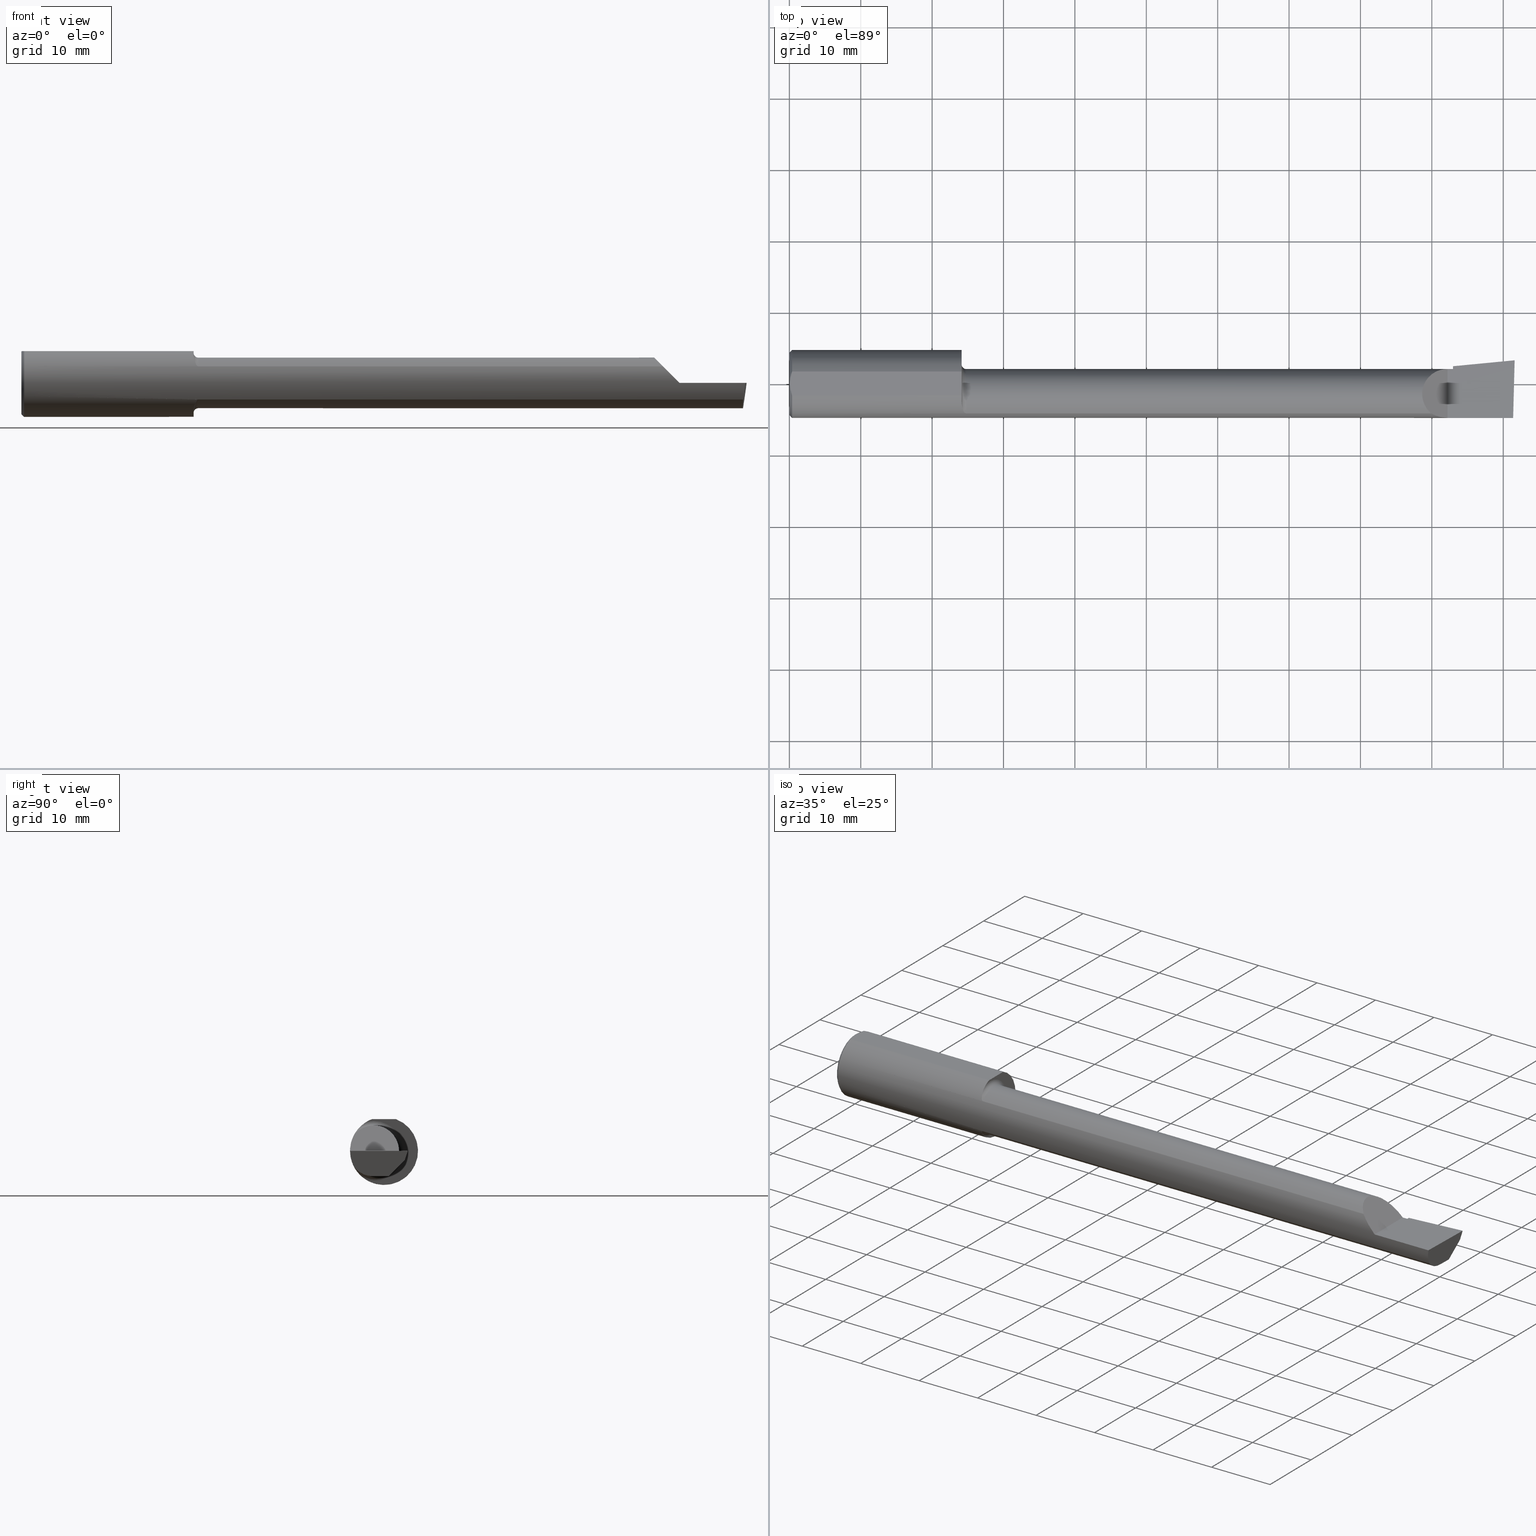
[diagram: canonical four-view strip — front | top / right | iso, engineering-drawing reading convention]
A machine part, canonical four-view strip (front | top / right | iso — engineering-drawing reading convention). The complete STEP part file that produces these views, byte-faithful:
ISO-10303-21;
HEADER;
FILE_DESCRIPTION (( 'STEP AP214' ),
    '1' );
FILE_NAME ('B3203000..STEP',
    '2020-05-07T19:23:13',
    ( '' ),
    ( '' ),
    'SwSTEP 2.0',
    'SolidWorks 2018',
    '' );
FILE_SCHEMA (( 'AUTOMOTIVE_DESIGN' ));
ENDSEC;

DATA;
#1 =( CONVERSION_BASED_UNIT ( 'INCH', #355 ) LENGTH_UNIT ( ) NAMED_UNIT ( #531 ) );
#2 = CARTESIAN_POINT ( 'NONE',  ( 0.01499999999999999424, 0.0000000000000000000, 0.0000000000000000000 ) ) ;
#3 = CARTESIAN_POINT ( 'NONE',  ( 3.656476415630202759, 0.01361451005324059056, -0.1207110541441176466 ) ) ;
#4 = EDGE_CURVE ( 'NONE', #350, #273, #341, .T. ) ;
#5 = FACE_OUTER_BOUND ( 'NONE', #549, .T. ) ;
#6 = DIRECTION ( 'NONE',  ( -0.7071067811865507924, 0.0000000000000000000, 0.7071067811865443531 ) ) ;
#7 = ORIENTED_EDGE ( 'NONE', *, *, #377, .T. ) ;
#8 = VERTEX_POINT ( 'NONE', #480 ) ;
#9 = DIRECTION ( 'NONE',  ( -1.000000000000000000, -4.268512490100411279E-18, -0.0000000000000000000 ) ) ;
#10 = CARTESIAN_POINT ( 'NONE',  ( 3.659999999999999698, -0.05739999999999999963, -0.1400500000000000633 ) ) ;
#11 = VECTOR ( 'NONE', #362, 39.37007874015748854 ) ;
#12 = ADVANCED_FACE ( 'NONE', ( #349 ), #84, .F. ) ;
#13 = ORIENTED_EDGE ( 'NONE', *, *, #212, .T. ) ;
#14 = ORIENTED_EDGE ( 'NONE', *, *, #159, .F. ) ;
#15 =( GEOMETRIC_REPRESENTATION_CONTEXT ( 3 ) GLOBAL_UNCERTAINTY_ASSIGNED_CONTEXT ( ( #173 ) ) GLOBAL_UNIT_ASSIGNED_CONTEXT ( ( #600, #517, #243 ) ) REPRESENTATION_CONTEXT ( 'NONE', 'WORKASPACE' ) );
#16 = PLANE ( 'NONE',  #75 ) ;
#17 = DIRECTION ( 'NONE',  ( 0.0000000000000000000, 0.0000000000000000000, -1.000000000000000000 ) ) ;
#18 = ORIENTED_EDGE ( 'NONE', *, *, #313, .T. ) ;
#19 = ORIENTED_EDGE ( 'NONE', *, *, #130, .F. ) ;
#20 = PRESENTATION_LAYER_ASSIGNMENT (  '', '', ( #550 ) ) ;
#21 = DIRECTION ( 'NONE',  ( -1.000000000000000000, -4.268512490100411279E-18, -0.0000000000000000000 ) ) ;
#22 = CARTESIAN_POINT ( 'NONE',  ( 0.003000000000000218638, 2.334609556160449697E-17, 0.1753499999999999781 ) ) ;
#23 = DIRECTION ( 'NONE',  ( 0.0000000000000000000, 0.0000000000000000000, 1.000000000000000000 ) ) ;
#24 = PLANE ( 'NONE',  #412 ) ;
#25 = DIRECTION ( 'NONE',  ( -1.000000000000000000, 5.691349986800549142E-18, -0.0000000000000000000 ) ) ;
#26 = EDGE_LOOP ( 'NONE', ( #594, #80, #302 ) ) ;
#27 = ORIENTED_EDGE ( 'NONE', *, *, #184, .T. ) ;
#28 = CARTESIAN_POINT ( 'NONE',  ( 2.047026079080032090, -0.05740000000000000657, 4.132328855998353457E-20 ) ) ;
#29 = ADVANCED_BREP_SHAPE_REPRESENTATION ( 'B3203000.', ( #95, #399 ), #15 ) ;
#30 = DIRECTION ( 'NONE',  ( 1.000000000000000000, 0.0000000000000000000, 0.0000000000000000000 ) ) ;
#31 = ORIENTED_EDGE ( 'NONE', *, *, #190, .T. ) ;
#32 = CARTESIAN_POINT ( 'NONE',  ( 0.01499999999999997863, -0.06597272163553657975, 0.1753499999999999781 ) ) ;
#33 = CARTESIAN_POINT ( 'NONE',  ( 3.659999999999999698, 0.09791172361283663472, 0.0000000000000000000 ) ) ;
#34 = EDGE_LOOP ( 'NONE', ( #478, #206, #27, #229 ) ) ;
#35 = DIRECTION ( 'NONE',  ( -4.858719700838190352E-34, -8.537024980200823790E-17, 1.000000000000000000 ) ) ;
#36 = DIRECTION ( 'NONE',  ( 0.0000000000000000000, -1.000000000000000000, 0.0000000000000000000 ) ) ;
#37 = VECTOR ( 'NONE', #266, 39.37007874015748854 ) ;
#38 = AXIS2_PLACEMENT_3D ( 'NONE', #82, #352, #296 ) ;
#39 = DIRECTION ( 'NONE',  ( -0.7071067811865443531, 0.0000000000000000000, -0.7071067811865507924 ) ) ;
#40 = ORIENTED_EDGE ( 'NONE', *, *, #303, .T. ) ;
#41 = DIRECTION ( 'NONE',  ( 1.000000000000000000, 4.268512490100411279E-18, 0.0000000000000000000 ) ) ;
#42 = CARTESIAN_POINT ( 'NONE',  ( 0.9749999999999999778, -0.1635956445993035913, 0.09130436773856066834 ) ) ;
#43 = LINE ( 'NONE', #59, #547 ) ;
#44 = ORIENTED_EDGE ( 'NONE', *, *, #185, .F. ) ;
#45 =( NAMED_UNIT ( * ) SI_UNIT ( $, .STERADIAN. ) SOLID_ANGLE_UNIT ( ) );
#46 = LINE ( 'NONE', #269, #102 ) ;
#47 = CARTESIAN_POINT ( 'NONE',  ( 3.654666039249973686, 0.01321247140458302501, -0.1209457786867196710 ) ) ;
#48 = ADVANCED_FACE ( 'NONE', ( #56 ), #57, .T. ) ;
#49 = ORIENTED_EDGE ( 'NONE', *, *, #329, .T. ) ;
#50 = CARTESIAN_POINT ( 'NONE',  ( 3.659999999999999698, 0.01441505128072236540, -0.1202356058309986681 ) ) ;
#51 = ORIENTED_EDGE ( 'NONE', *, *, #159, .T. ) ;
#52 = DIRECTION ( 'NONE',  ( 1.000000000000000000, 0.0000000000000000000, 0.0000000000000000000 ) ) ;
#53 = ADVANCED_FACE ( 'NONE', ( #278 ), #16, .F. ) ;
#54 = FACE_OUTER_BOUND ( 'NONE', #260, .T. ) ;
#55 = EDGE_CURVE ( 'NONE', #142, #396, #468, .T. ) ;
#56 = FACE_OUTER_BOUND ( 'NONE', #316, .T. ) ;
#57 = CONICAL_SURFACE ( 'NONE', #528, 0.1873499999999999888, 0.7853981633974602694 ) ;
#58 = ORIENTED_EDGE ( 'NONE', *, *, #476, .F. ) ;
#59 = CARTESIAN_POINT ( 'NONE',  ( 0.01499999999999999424, 0.0000000000000000000, -0.1873499999999999888 ) ) ;
#60 = DIRECTION ( 'NONE',  ( -1.253267817926298879E-18, 0.2936076258024062913, 0.9559260233253795702 ) ) ;
#61 = FILL_AREA_STYLE ('',( #336 ) ) ;
#62 = UNCERTAINTY_MEASURE_WITH_UNIT (LENGTH_MEASURE( 1.000000000000000082E-05 ), #1, 'distance_accuracy_value', 'NONE');
#63 = LINE ( 'NONE', #238, #618 ) ;
#64 = ORIENTED_EDGE ( 'NONE', *, *, #315, .F. ) ;
#65 = CARTESIAN_POINT ( 'NONE',  ( 3.659999999999999698, 0.01441505128072236540, -0.1202356058309986681 ) ) ;
#66 = ORIENTED_EDGE ( 'NONE', *, *, #156, .T. ) ;
#67 = CARTESIAN_POINT ( 'NONE',  ( 3.649559965233994507, 0.06624107758111220934, -0.06577907292278802054 ) ) ;
#68 = AXIS2_PLACEMENT_3D ( 'NONE', #195, #421, #486 ) ;
#69 = CARTESIAN_POINT ( 'NONE',  ( 3.999999999999979572, 0.1306500000000239969, 8.433726977940392991E-14 ) ) ;
#70 = ORIENTED_EDGE ( 'NONE', *, *, #250, .F. ) ;
#71 = LINE ( 'NONE', #208, #103 ) ;
#72 = ORIENTED_EDGE ( 'NONE', *, *, #222, .T. ) ;
#73 = DIRECTION ( 'NONE',  ( -1.000000000000000000, -0.0000000000000000000, -0.0000000000000000000 ) ) ;
#74 = CARTESIAN_POINT ( 'NONE',  ( 0.0000000000000000000, -0.05740000000000001351, 0.0000000000000000000 ) ) ;
#75 = AXIS2_PLACEMENT_3D ( 'NONE', #529, #400, #194 ) ;
#76 = ADVANCED_FACE ( 'NONE', ( #391 ), #485, .T. ) ;
#77 =( BOUNDED_CURVE ( )  B_SPLINE_CURVE ( 3, ( #175, #578, #210, #605 ),
 .UNSPECIFIED., .F., .F. ) 
 B_SPLINE_CURVE_WITH_KNOTS ( ( 4, 4 ),
 ( 0.8516985021657694777, 1.360746882515202261 ),
 .UNSPECIFIED. ) 
 CURVE ( )  GEOMETRIC_REPRESENTATION_ITEM ( )  RATIONAL_B_SPLINE_CURVE ( ( 1.000000000000000000, 0.9785221379938660036, 0.9785221379938660036, 1.000000000000000000 ) ) 
 REPRESENTATION_ITEM ( '' )  );
#78 = VECTOR ( 'NONE', #60, 39.37007874015748143 ) ;
#79 = COLOUR_RGB ( '',0.7529411764705882248, 0.7529411764705882248, 0.7529411764705882248 ) ;
#80 = ORIENTED_EDGE ( 'NONE', *, *, #298, .F. ) ;
#81 = VERTEX_POINT ( 'NONE', #155 ) ;
#82 = CARTESIAN_POINT ( 'NONE',  ( 0.9749999999999999778, -0.05739999999999999963, 0.0000000000000000000 ) ) ;
#83 = AXIS2_PLACEMENT_3D ( 'NONE', #617, #254, #179 ) ;
#84 = TOROIDAL_SURFACE ( 'NONE', #38, 0.1650499999999997247, 0.02500000000000001527 ) ;
#85 = ORIENTED_EDGE ( 'NONE', *, *, #222, .F. ) ;
#86 = VERTEX_POINT ( 'NONE', #590 ) ;
#87 = CARTESIAN_POINT ( 'NONE',  ( 3.659999999999999698, 0.06495571228477974024, -0.06814016562413267863 ) ) ;
#88 = ADVANCED_FACE ( 'NONE', ( #129 ), #205, .T. ) ;
#89 = VERTEX_POINT ( 'NONE', #100 ) ;
#90 = LINE ( 'NONE', #403, #11 ) ;
#91 = DIRECTION ( 'NONE',  ( 0.0000000000000000000, 0.0000000000000000000, 1.000000000000000000 ) ) ;
#92 = ORIENTED_EDGE ( 'NONE', *, *, #139, .T. ) ;
#93 = ORIENTED_EDGE ( 'NONE', *, *, #152, .T. ) ;
#94 = CARTESIAN_POINT ( 'NONE',  ( 0.003000000000000218638, 2.334609556160449697E-17, 0.1753499999999999781 ) ) ;
#95 = MANIFOLD_SOLID_BREP ( '772AD285-7EF6-43c1-A111-729DE06EC39F-GAAFaceID6', #211 ) ;
#96 = VECTOR ( 'NONE', #30, 39.37007874015748143 ) ;
#97 = CARTESIAN_POINT ( 'NONE',  ( 0.9749999999999999778, -0.1635956445993038411, -0.09130436773856039079 ) ) ;
#98 = ORIENTED_EDGE ( 'NONE', *, *, #313, .F. ) ;
#99 = ORIENTED_EDGE ( 'NONE', *, *, #242, .T. ) ;
#100 = CARTESIAN_POINT ( 'NONE',  ( 3.649559965233994507, 0.06624107758111220934, -0.06577907292278802054 ) ) ;
#101 = DIRECTION ( 'NONE',  ( -1.000000000000000000, -0.0000000000000000000, -0.0000000000000000000 ) ) ;
#102 = VECTOR ( 'NONE', #183, 39.37007874015748143 ) ;
#103 = VECTOR ( 'NONE', #536, 39.37007874015748854 ) ;
#104 = EDGE_CURVE ( 'NONE', #282, #217, #191, .T. ) ;
#105 = EDGE_LOOP ( 'NONE', ( #322, #154 ) ) ;
#106 = PRODUCT_DEFINITION_SHAPE ( 'NONE', 'NONE',  #370 ) ;
#107 = VECTOR ( 'NONE', #363, 39.37007874015748143 ) ;
#108 = CARTESIAN_POINT ( 'NONE',  ( 0.008227791779583789808, -0.04447712204611815878, 0.1753499999999999781 ) ) ;
#109 = ORIENTED_EDGE ( 'NONE', *, *, #292, .F. ) ;
#110 = CARTESIAN_POINT ( 'NONE',  ( 0.9727799353194342968, -0.1635956445993038688, -0.09130436773856032140 ) ) ;
#111 = CARTESIAN_POINT ( 'NONE',  ( 0.9503837281337297327, -0.1114837668894157752, 0.1508119329971092104 ) ) ;
#112 = DIRECTION ( 'NONE',  ( 0.0000000000000000000, 1.000000000000000000, 0.0000000000000000000 ) ) ;
#113 = ORIENTED_EDGE ( 'NONE', *, *, #133, .T. ) ;
#114 = EDGE_CURVE ( 'NONE', #123, #317, #545, .T. ) ;
#115 = CARTESIAN_POINT ( 'NONE',  ( 3.981080296960509468, -0.1635956445993031472, -0.09130436773856158428 ) ) ;
#116 = FACE_OUTER_BOUND ( 'NONE', #359, .T. ) ;
#117 = VECTOR ( 'NONE', #401, 39.37007874015748854 ) ;
#118 = CARTESIAN_POINT ( 'NONE',  ( 0.01499999999999999424, 0.06597272163553663527, 0.1753499999999999781 ) ) ;
#119 = EDGE_LOOP ( 'NONE', ( #274, #167, #49, #493, #44 ) ) ;
#120 = AXIS2_PLACEMENT_3D ( 'NONE', #328, #358, #240 ) ;
#121 = ORIENTED_EDGE ( 'NONE', *, *, #125, .T. ) ;
#122 = UNCERTAINTY_MEASURE_WITH_UNIT (LENGTH_MEASURE( 1.000000000000000082E-05 ), #477, 'distance_accuracy_value', 'NONE');
#123 = VERTEX_POINT ( 'NONE', #467 ) ;
#124 = VECTOR ( 'NONE', #311, 39.37007874015748143 ) ;
#125 = EDGE_CURVE ( 'NONE', #607, #610, #411, .T. ) ;
#126 = ORIENTED_EDGE ( 'NONE', *, *, #242, .F. ) ;
#127 = VERTEX_POINT ( 'NONE', #32 ) ;
#128 = EDGE_CURVE ( 'NONE', #127, #334, #285, .T. ) ;
#129 = FACE_OUTER_BOUND ( 'NONE', #387, .T. ) ;
#130 = EDGE_CURVE ( 'NONE', #442, #611, #417, .T. ) ;
#131 = APPLICATION_PROTOCOL_DEFINITION ( 'draft international standard', 'automotive_design', 1998, #516 ) ;
#132 = ADVANCED_FACE ( 'NONE', ( #54 ), #382, .F. ) ;
#133 = EDGE_CURVE ( 'NONE', #162, #345, #337, .T. ) ;
#134 = LENGTH_MEASURE_WITH_UNIT ( LENGTH_MEASURE( 0.02539999999999999897 ), #613 );
#135 = VECTOR ( 'NONE', #384, 39.37007874015748854 ) ;
#136 = LINE ( 'NONE', #436, #581 ) ;
#137 = PLANE ( 'NONE',  #510 ) ;
#138 = ORIENTED_EDGE ( 'NONE', *, *, #104, .F. ) ;
#139 = EDGE_CURVE ( 'NONE', #360, #575, #432, .T. ) ;
#140 = CARTESIAN_POINT ( 'NONE',  ( 0.9679759419021531919, -0.1612443294219087220, -0.09540922431498091716 ) ) ;
#141 = CIRCLE ( 'NONE', #271, 0.1400500000000002299 ) ;
#142 = VERTEX_POINT ( 'NONE', #150 ) ;
#143 = DIRECTION ( 'NONE',  ( 1.000000000000000000, 4.268512490100411279E-18, 0.0000000000000000000 ) ) ;
#144 = ORIENTED_EDGE ( 'NONE', *, *, #216, .T. ) ;
#145 = AXIS2_PLACEMENT_3D ( 'NONE', #597, #39, #6 ) ;
#146 =( NAMED_UNIT ( * ) PLANE_ANGLE_UNIT ( ) SI_UNIT ( $, .RADIAN. ) );
#147 = FACE_OUTER_BOUND ( 'NONE', #26, .T. ) ;
#148 = CARTESIAN_POINT ( 'NONE',  ( 3.658254417281639803, 0.01401537333401178288, -0.1204743278970654280 ) ) ;
#149 = CARTESIAN_POINT ( 'NONE',  ( 0.0000000000000000000, 2.202527268266512578E-17, 0.1723499999999996424 ) ) ;
#150 = CARTESIAN_POINT ( 'NONE',  ( 3.981080296960509468, -0.1635956445993031472, -0.09130436773856158428 ) ) ;
#151 = ORIENTED_EDGE ( 'NONE', *, *, #476, .T. ) ;
#152 = EDGE_CURVE ( 'NONE', #8, #127, #164, .T. ) ;
#153 = CIRCLE ( 'NONE', #426, 0.1873499999999999888 ) ;
#154 = ORIENTED_EDGE ( 'NONE', *, *, #324, .T. ) ;
#155 = CARTESIAN_POINT ( 'NONE',  ( 3.629999999999999893, -0.1873499999999999888, -1.383850883036508279E-16 ) ) ;
#156 = EDGE_CURVE ( 'NONE', #345, #310, #245, .T. ) ;
#157 = DIRECTION ( 'NONE',  ( 1.000000000000000000, 4.268512490100411279E-18, 0.0000000000000000000 ) ) ;
#158 = PRESENTATION_LAYER_ASSIGNMENT (  '', '', ( #579 ) ) ;
#159 = EDGE_CURVE ( 'NONE', #162, #86, #599, .T. ) ;
#160 = EDGE_CURVE ( 'NONE', #494, #273, #425, .T. ) ;
#161 = CARTESIAN_POINT ( 'NONE',  ( 3.654666039249973686, 0.01321247140458302501, -0.1209457786867196710 ) ) ;
#162 = VERTEX_POINT ( 'NONE', #394 ) ;
#163 = CARTESIAN_POINT ( 'NONE',  ( 0.01499999999999999424, 0.06597272163553663527, 0.1753499999999999781 ) ) ;
#164 = CIRCLE ( 'NONE', #434, 0.1873499999999999888 ) ;
#165 = DIRECTION ( 'NONE',  ( 0.0000000000000000000, 0.0000000000000000000, -1.000000000000000000 ) ) ;
#166 = EDGE_CURVE ( 'NONE', #273, #566, #456, .T. ) ;
#167 = ORIENTED_EDGE ( 'NONE', *, *, #371, .T. ) ;
#168 = CARTESIAN_POINT ( 'NONE',  ( 0.9637641080978833763, -0.1573043405450777754, 0.1018329020719625222 ) ) ;
#169 =( LENGTH_UNIT ( ) NAMED_UNIT ( * ) SI_UNIT ( $, .METRE. ) );
#170 = ADVANCED_FACE ( 'NONE', ( #5 ), #437, .T. ) ;
#171 = DIRECTION ( 'NONE',  ( -1.000000000000000000, -0.0000000000000000000, -0.0000000000000000000 ) ) ;
#172 = ORIENTED_EDGE ( 'NONE', *, *, #166, .F. ) ;
#173 = UNCERTAINTY_MEASURE_WITH_UNIT (LENGTH_MEASURE( 1.000000000000000082E-05 ), #600, 'distance_accuracy_value', 'NONE');
#174 = DIRECTION ( 'NONE',  ( 0.0000000000000000000, -0.6963153109074927682, -0.7177360153954946975 ) ) ;
#175 = CARTESIAN_POINT ( 'NONE',  ( 3.981080296960509468, -0.1635956445993031472, -0.09130436773856158428 ) ) ;
#176 = ORIENTED_EDGE ( 'NONE', *, *, #212, .F. ) ;
#177 = CARTESIAN_POINT ( 'NONE',  ( 3.659999999999999698, -0.05739999999999999963, 0.0000000000000000000 ) ) ;
#178 = LINE ( 'NONE', #580, #117 ) ;
#179 = DIRECTION ( 'NONE',  ( 0.0000000000000000000, -1.000000000000000000, 0.0000000000000000000 ) ) ;
#180 = EDGE_CURVE ( 'NONE', #442, #282, #141, .T. ) ;
#181 = ORIENTED_EDGE ( 'NONE', *, *, #353, .T. ) ;
#182 = CARTESIAN_POINT ( 'NONE',  ( 3.652201917153907296, 0.03880335782617828216, -0.1900000000000001132 ) ) ;
#183 = DIRECTION ( 'NONE',  ( 0.7071067811865390240, 8.659560562355036396E-17, 0.7071067811865560104 ) ) ;
#184 = EDGE_CURVE ( 'NONE', #566, #257, #153, .T. ) ;
#185 = EDGE_CURVE ( 'NONE', #123, #8, #43, .T. ) ;
#186 = CARTESIAN_POINT ( 'NONE',  ( 3.993439983562941720, 0.1146611065212079367, -0.05000000000000003053 ) ) ;
#187 = ORIENTED_EDGE ( 'NONE', *, *, #264, .F. ) ;
#188 = CARTESIAN_POINT ( 'NONE',  ( 0.0000000000000000000, 0.0000000000000000000, 0.0000000000000000000 ) ) ;
#189 = CARTESIAN_POINT ( 'NONE',  ( 0.9499999999999999556, -0.06597272163553659363, 0.1753499999999999781 ) ) ;
#190 = EDGE_CURVE ( 'NONE', #610, #442, #507, .T. ) ;
#191 = LINE ( 'NONE', #509, #304 ) ;
#192 = CARTESIAN_POINT ( 'NONE',  ( 0.01125230581755086272, 0.05532998191409922023, 0.1753500000000000059 ) ) ;
#193 = ORIENTED_EDGE ( 'NONE', *, *, #292, .T. ) ;
#194 = DIRECTION ( 'NONE',  ( 0.0000000000000000000, 1.000000000000000000, -1.438723400918613551E-16 ) ) ;
#195 = CARTESIAN_POINT ( 'NONE',  ( 0.0000000000000000000, 0.0000000000000000000, 0.0000000000000000000 ) ) ;
#196 = ORIENTED_EDGE ( 'NONE', *, *, #200, .T. ) ;
#197 = CARTESIAN_POINT ( 'NONE',  ( 0.9499999999999999556, 0.1076499999999997320, 0.0000000000000000000 ) ) ;
#198 = AXIS2_PLACEMENT_3D ( 'NONE', #249, #244, #452 ) ;
#199 = APPLICATION_CONTEXT ( 'automotive_design' ) ;
#200 = EDGE_CURVE ( 'NONE', #440, #81, #570, .T. ) ;
#201 = FACE_OUTER_BOUND ( 'NONE', #232, .T. ) ;
#202 = ADVANCED_FACE ( 'NONE', ( #233 ), #24, .T. ) ;
#203 = CARTESIAN_POINT ( 'NONE',  ( 0.01128414053810044941, -0.05542038647445821781, 0.1753499999999999781 ) ) ;
#204 = AXIS2_PLACEMENT_3D ( 'NONE', #219, #463, #393 ) ;
#205 = PLANE ( 'NONE',  #562 ) ;
#206 = ORIENTED_EDGE ( 'NONE', *, *, #166, .T. ) ;
#207 = EDGE_LOOP ( 'NONE', ( #301, #392, #346 ) ) ;
#208 = CARTESIAN_POINT ( 'NONE',  ( 3.648099498941298702, 0.08140859995291799267, -0.05000000000000002359 ) ) ;
#209 = CARTESIAN_POINT ( 'NONE',  ( 3.991672876940992154, -0.1873499999999999888, -1.700101953615524951E-16 ) ) ;
#210 = CARTESIAN_POINT ( 'NONE',  ( 3.987725449370725705, -0.1873499999999999055, -0.03213820089768518184 ) ) ;
#211 = CLOSED_SHELL ( 'NONE', ( #366, #76, #170, #53, #132, #542, #332, #48, #12, #202, #300, #318, #462, #327, #583, #88, #308 ) ) ;
#212 = EDGE_CURVE ( 'NONE', #142, #575, #515, .T. ) ;
#213 = ORIENTED_EDGE ( 'NONE', *, *, #190, .F. ) ;
#214 = VECTOR ( 'NONE', #543, 39.37007874015748143 ) ;
#215 = CARTESIAN_POINT ( 'NONE',  ( 0.9561423219567500853, -0.1426151417460937709, 0.1217894822571224389 ) ) ;
#216 = EDGE_CURVE ( 'NONE', #86, #396, #90, .T. ) ;
#217 = VERTEX_POINT ( 'NONE', #288 ) ;
#218 = VECTOR ( 'NONE', #568, 39.37007874015748143 ) ;
#219 = CARTESIAN_POINT ( 'NONE',  ( 3.975850273311265060, -0.1244607267090813707, -0.1422282308645910209 ) ) ;
#220 = ORIENTED_EDGE ( 'NONE', *, *, #234, .F. ) ;
#221 = ORIENTED_EDGE ( 'NONE', *, *, #377, .F. ) ;
#222 = EDGE_CURVE ( 'NONE', #142, #440, #77, .T. ) ;
#223 = SURFACE_SIDE_STYLE ('',( #540 ) ) ;
#224 = LINE ( 'NONE', #460, #37 ) ;
#225 = EDGE_CURVE ( 'NONE', #217, #530, #71, .T. ) ;
#226 = FILL_AREA_STYLE ('',( #431 ) ) ;
#227 = DIRECTION ( 'NONE',  ( 0.0000000000000000000, 1.000000000000000000, 0.0000000000000000000 ) ) ;
#228 = EDGE_LOOP ( 'NONE', ( #616, #92, #18, #220 ) ) ;
#229 = ORIENTED_EDGE ( 'NONE', *, *, #234, .T. ) ;
#230 = PRESENTATION_STYLE_ASSIGNMENT (( #261 ) ) ;
#231 = CARTESIAN_POINT ( 'NONE',  ( 3.475085956200448578, 0.08265000000000008451, 0.1549140437995496777 ) ) ;
#232 = EDGE_LOOP ( 'NONE', ( #181, #367, #459, #151 ) ) ;
#233 = FACE_OUTER_BOUND ( 'NONE', #34, .T. ) ;
#234 = EDGE_CURVE ( 'NONE', #257, #494, #339, .T. ) ;
#235 = ORIENTED_EDGE ( 'NONE', *, *, #180, .T. ) ;
#236 = ORIENTED_EDGE ( 'NONE', *, *, #250, .T. ) ;
#237 = VECTOR ( 'NONE', #588, 39.37007874015748143 ) ;
#238 = CARTESIAN_POINT ( 'NONE',  ( 0.0000000000000000000, -0.06597272163553657975, 0.1753499999999999781 ) ) ;
#239 = ORIENTED_EDGE ( 'NONE', *, *, #128, .T. ) ;
#240 = DIRECTION ( 'NONE',  ( 4.268512490100411279E-18, -1.000000000000000000, 0.0000000000000000000 ) ) ;
#241 = CARTESIAN_POINT ( 'NONE',  ( 3.421229036482944075, -0.06260079402492460532, 0.2087709635170540423 ) ) ;
#242 = EDGE_CURVE ( 'NONE', #360, #607, #136, .T. ) ;
#243 =( NAMED_UNIT ( * ) SI_UNIT ( $, .STERADIAN. ) SOLID_ANGLE_UNIT ( ) );
#244 = DIRECTION ( 'NONE',  ( -1.000000000000000000, -4.268512490100411279E-18, -0.0000000000000000000 ) ) ;
#245 =( BOUNDED_CURVE ( )  B_SPLINE_CURVE ( 3, ( #65, #148, #3, #161 ),
 .UNSPECIFIED., .F., .F. ) 
 B_SPLINE_CURVE_WITH_KNOTS ( ( 4, 4 ),
 ( 3.403716554974004715, 3.413688882750589126 ),
 .UNSPECIFIED. ) 
 CURVE ( )  GEOMETRIC_REPRESENTATION_ITEM ( )  RATIONAL_B_SPLINE_CURVE ( ( 1.000000000000000000, 0.9999917127403961103, 0.9999917127403961103, 1.000000000000000000 ) ) 
 REPRESENTATION_ITEM ( '' )  );
#246 = CARTESIAN_POINT ( 'NONE',  ( 0.9499999999999999556, -0.09715400696864176511, 0.1601908905959920915 ) ) ;
#247 = VECTOR ( 'NONE', #500, 39.37007874015748143 ) ;
#248 = DIRECTION ( 'NONE',  ( -4.268512490100411279E-18, 1.000000000000000000, 0.0000000000000000000 ) ) ;
#249 = CARTESIAN_POINT ( 'NONE',  ( 0.9499999999999999556, -0.05740000000000001351, 0.0000000000000000000 ) ) ;
#250 = EDGE_CURVE ( 'NONE', #440, #410, #224, .T. ) ;
#251 = ORIENTED_EDGE ( 'NONE', *, *, #55, .T. ) ;
#252 = AXIS2_PLACEMENT_3D ( 'NONE', #447, #351, #615 ) ;
#253 = CARTESIAN_POINT ( 'NONE',  ( 0.004093196532652216939, -0.02240707710020816909, 0.1753499999999999504 ) ) ;
#254 = DIRECTION ( 'NONE',  ( -1.000000000000000000, -4.268512490100411279E-18, -0.0000000000000000000 ) ) ;
#255 =( BOUNDED_CURVE ( )  B_SPLINE_CURVE ( 3, ( #354, #473, #433, #505 ),
 .UNSPECIFIED., .F., .T. ) 
 B_SPLINE_CURVE_WITH_KNOTS ( ( 4, 4 ),
 ( 4.712388980384689674, 5.221437360734123345 ),
 .UNSPECIFIED. ) 
 CURVE ( )  GEOMETRIC_REPRESENTATION_ITEM ( )  RATIONAL_B_SPLINE_CURVE ( ( 1.000000000000000000, 0.9785221379938657815, 0.9785221379938657815, 1.000000000000000000 ) ) 
 REPRESENTATION_ITEM ( '' )  );
#256 = CARTESIAN_POINT ( 'NONE',  ( 3.977873865042411250, -0.05739999999999999963, -0.1400500000000000633 ) ) ;
#257 = VERTEX_POINT ( 'NONE', #312 ) ;
#258 = EDGE_CURVE ( 'NONE', #257, #360, #495, .T. ) ;
#259 = DIRECTION ( 'NONE',  ( -8.744705756855574331E-17, 0.0000000000000000000, -1.000000000000000000 ) ) ;
#260 = EDGE_LOOP ( 'NONE', ( #514, #236, #592, #19, #213, #576 ) ) ;
#261 = SURFACE_STYLE_USAGE ( .BOTH. , #223 ) ;
#262 = DIRECTION ( 'NONE',  ( -1.000000000000000000, -0.0000000000000000000, -0.0000000000000000000 ) ) ;
#263 = DIRECTION ( 'NONE',  ( 1.000000000000000000, 0.0000000000000000000, 0.0000000000000000000 ) ) ;
#264 = EDGE_CURVE ( 'NONE', #89, #310, #422, .T. ) ;
#265 = EDGE_CURVE ( 'NONE', #350, #8, #320, .T. ) ;
#266 = DIRECTION ( 'NONE',  ( 0.02617694830779336568, 0.9996573249755593693, -2.255099122137375044E-18 ) ) ;
#267 = APPLICATION_PROTOCOL_DEFINITION ( 'draft international standard', 'automotive_design', 1998, #199 ) ;
#268 = CARTESIAN_POINT ( 'NONE',  ( 0.9580729541431400875, -0.1479074971576205821, 0.1152872342625222146 ) ) ;
#269 = CARTESIAN_POINT ( 'NONE',  ( 0.01499999999999999424, 2.294375778202566330E-17, 0.1873499999999999888 ) ) ;
#270 = CARTESIAN_POINT ( 'NONE',  ( 0.003000000000000218638, 2.334609556160449697E-17, 0.1753499999999999781 ) ) ;
#271 = AXIS2_PLACEMENT_3D ( 'NONE', #177, #21, #438 ) ;
#272 = DIRECTION ( 'NONE',  ( 0.0000000000000000000, -0.2936076258024062913, -0.9559260233253795702 ) ) ;
#273 = VERTEX_POINT ( 'NONE', #596 ) ;
#274 = ORIENTED_EDGE ( 'NONE', *, *, #324, .F. ) ;
#275 =( LENGTH_UNIT ( ) NAMED_UNIT ( * ) SI_UNIT ( $, .METRE. ) );
#276 = CARTESIAN_POINT ( 'NONE',  ( 4.000000000000000000, -0.05739999999999999963, -0.1400500000000000633 ) ) ;
#277 = EDGE_CURVE ( 'NONE', #512, #162, #490, .T. ) ;
#278 = FACE_OUTER_BOUND ( 'NONE', #405, .T. ) ;
#279 = CARTESIAN_POINT ( 'NONE',  ( 3.538695632261437574, -0.1635956445993030917, 0.09130436773856166754 ) ) ;
#280 = CARTESIAN_POINT ( 'NONE',  ( 3.648099498941298702, 0.08140859995291799267, -0.05000000000000002359 ) ) ;
#281 = DIRECTION ( 'NONE',  ( 0.0000000000000000000, 0.0000000000000000000, 1.000000000000000000 ) ) ;
#282 = VERTEX_POINT ( 'NONE', #582 ) ;
#283 = EDGE_CURVE ( 'NONE', #410, #530, #522, .T. ) ;
#284 = CARTESIAN_POINT ( 'NONE',  ( 0.003000000000000172667, -0.01126410975715121283, 0.1753500000000000059 ) ) ;
#285 = B_SPLINE_CURVE_WITH_KNOTS ( 'NONE', 3,
 ( #380, #203, #108, #253, #284, #94 ),
 .UNSPECIFIED., .F., .F.,
 ( 4, 2, 4 ),
 ( 0.001779942938356815062, 0.002629978419973711019, 0.003480013901590607410 ),
 .UNSPECIFIED. ) ;
#286 = AXIS2_PLACEMENT_3D ( 'NONE', #2, #263, #17 ) ;
#287 = EDGE_CURVE ( 'NONE', #81, #610, #546, .T. ) ;
#288 = CARTESIAN_POINT ( 'NONE',  ( 3.659999999999999698, 0.08255448787293397095, -0.05000000000000003053 ) ) ;
#289 = ORIENTED_EDGE ( 'NONE', *, *, #371, .F. ) ;
#290 = DIRECTION ( 'NONE',  ( -1.000000000000000000, -4.268512490100411279E-18, 0.0000000000000000000 ) ) ;
#291 = ORIENTED_EDGE ( 'NONE', *, *, #258, .F. ) ;
#292 = EDGE_CURVE ( 'NONE', #89, #310, #435, .T. ) ;
#293 = CARTESIAN_POINT ( 'NONE',  ( 4.000000000000000000, -0.2500000000000000555, -1.707404996040164512E-16 ) ) ;
#294 =( NAMED_UNIT ( * ) PLANE_ANGLE_UNIT ( ) SI_UNIT ( $, .RADIAN. ) );
#295 = VECTOR ( 'NONE', #356, 39.37007874015747433 ) ;
#296 = DIRECTION ( 'NONE',  ( 4.268512490100411279E-18, -1.000000000000000000, 0.0000000000000000000 ) ) ;
#297 = CARTESIAN_POINT ( 'NONE',  ( 3.646634349579652490, 0.09662475785532552430, -6.829619984160658046E-17 ) ) ;
#298 = EDGE_CURVE ( 'NONE', #81, #607, #255, .T. ) ;
#299 =( GEOMETRIC_REPRESENTATION_CONTEXT ( 3 ) GLOBAL_UNCERTAINTY_ASSIGNED_CONTEXT ( ( #122 ) ) GLOBAL_UNIT_ASSIGNED_CONTEXT ( ( #477, #294, #577 ) ) REPRESENTATION_CONTEXT ( 'NONE', 'WORKASPACE' ) );
#300 = ADVANCED_FACE ( 'NONE', ( #357 ), #481, .T. ) ;
#301 = ORIENTED_EDGE ( 'NONE', *, *, #133, .F. ) ;
#302 = ORIENTED_EDGE ( 'NONE', *, *, #287, .T. ) ;
#303 = EDGE_CURVE ( 'NONE', #345, #512, #601, .T. ) ;
#304 = VECTOR ( 'NONE', #458, 39.37007874015748143 ) ;
#305 = VECTOR ( 'NONE', #374, 39.37007874015748143 ) ;
#306 = CARTESIAN_POINT ( 'NONE',  ( 3.659999999999999698, 0.1149890494305081945, -0.01656765604781319789 ) ) ;
#307 = ORIENTED_EDGE ( 'NONE', *, *, #329, .F. ) ;
#308 = ADVANCED_FACE ( 'NONE', ( #474 ), #369, .F. ) ;
#309 = ORIENTED_EDGE ( 'NONE', *, *, #55, .F. ) ;
#310 = VERTEX_POINT ( 'NONE', #325 ) ;
#311 = DIRECTION ( 'NONE',  ( -4.268512490100411279E-18, 1.000000000000000000, 3.732688574539098315E-34 ) ) ;
#312 = CARTESIAN_POINT ( 'NONE',  ( 0.9499999999999999556, -0.09715400696864176511, 0.1601908905959920915 ) ) ;
#313 = EDGE_CURVE ( 'NONE', #575, #494, #326, .T. ) ;
#314 = LINE ( 'NONE', #28, #214 ) ;
#315 = EDGE_CURVE ( 'NONE', #530, #86, #178, .T. ) ;
#316 = EDGE_LOOP ( 'NONE', ( #289, #418, #502, #93, #239 ) ) ;
#317 = VERTEX_POINT ( 'NONE', #149 ) ;
#318 = ADVANCED_FACE ( 'NONE', ( #609 ), #482, .T. ) ;
#319 = DIRECTION ( 'NONE',  ( -0.09584575252021095004, 0.9953961983671800740, 0.0000000000000000000 ) ) ;
#320 = CIRCLE ( 'NONE', #252, 0.1873499999999999888 ) ;
#321 = CARTESIAN_POINT ( 'NONE',  ( 0.9499999999999999556, 0.0000000000000000000, 0.0000000000000000000 ) ) ;
#322 = ORIENTED_EDGE ( 'NONE', *, *, #114, .T. ) ;
#323 = ORIENTED_EDGE ( 'NONE', *, *, #128, .F. ) ;
#324 = EDGE_CURVE ( 'NONE', #317, #123, #555, .T. ) ;
#325 = CARTESIAN_POINT ( 'NONE',  ( 3.654666039249973686, 0.01321247140458302501, -0.1209457786867196710 ) ) ;
#326 = B_SPLINE_CURVE_WITH_KNOTS ( 'NONE', 3,
 ( #397, #110, #427, #140, #424, #572, #484, #544, #383, #560, #488, #503, #406, #376 ),
 .UNSPECIFIED., .F., .F.,
 ( 4, 2, 2, 2, 2, 2, 4 ),
 ( 1.968340875534775316E-07, 0.0001667114270246299545, 0.0003332260199617064389, 0.0006662552058358533905, 0.001332313577584149028, 0.001998371949332444341, 0.002664430321080739870 ),
 .UNSPECIFIED. ) ;
#327 = ADVANCED_FACE ( 'NONE', ( #201 ), #553, .F. ) ;
#328 = CARTESIAN_POINT ( 'NONE',  ( 3.659999999999999698, 0.09791172361283663472, 0.0000000000000000000 ) ) ;
#329 = EDGE_CURVE ( 'NONE', #334, #350, #465, .T. ) ;
#330 = SURFACE_STYLE_USAGE ( .BOTH. , #595 ) ;
#331 = PRODUCT_RELATED_PRODUCT_CATEGORY ( 'part', '', ( #518 ) ) ;
#332 = ADVANCED_FACE ( 'NONE', ( #569 ), #604, .F. ) ;
#333 = ORIENTED_EDGE ( 'NONE', *, *, #265, .F. ) ;
#334 = VERTEX_POINT ( 'NONE', #22 ) ;
#335 = PLANE ( 'NONE',  #145 ) ;
#336 = FILL_AREA_STYLE_COLOUR ( '', #79 ) ;
#337 = LINE ( 'NONE', #306, #563 ) ;
#338 = CARTESIAN_POINT ( 'NONE',  ( 3.538695632261437574, -0.1635956445993030917, 0.09130436773856166754 ) ) ;
#339 = CIRCLE ( 'NONE', #198, 0.1650499999999997525 ) ;
#340 = CARTESIAN_POINT ( 'NONE',  ( 3.659999999999999698, -0.05739999999999999963, -0.1400500000000000633 ) ) ;
#341 = LINE ( 'NONE', #389, #96 ) ;
#342 = VECTOR ( 'NONE', #361, 39.37007874015748143 ) ;
#343 = CARTESIAN_POINT ( 'NONE',  ( 3.648099498941298702, 0.08140859995291799267, -0.05000000000000002359 ) ) ;
#344 = CARTESIAN_POINT ( 'NONE',  ( 0.9749999999999999778, -0.05740000000000001351, 0.0000000000000000000 ) ) ;
#345 = VERTEX_POINT ( 'NONE', #50 ) ;
#346 = ORIENTED_EDGE ( 'NONE', *, *, #303, .F. ) ;
#347 = DIRECTION ( 'NONE',  ( 4.268512490100411279E-18, -1.000000000000000000, 0.0000000000000000000 ) ) ;
#348 = CONICAL_SURFACE ( 'NONE', #286, 0.1873499999999999888, 0.7853981633974602694 ) ;
#349 = FACE_OUTER_BOUND ( 'NONE', #228, .T. ) ;
#350 = VERTEX_POINT ( 'NONE', #118 ) ;
#351 = DIRECTION ( 'NONE',  ( -1.000000000000000000, -0.0000000000000000000, -0.0000000000000000000 ) ) ;
#352 = DIRECTION ( 'NONE',  ( -1.000000000000000000, -4.268512490100411279E-18, -0.0000000000000000000 ) ) ;
#353 = EDGE_CURVE ( 'NONE', #611, #410, #314, .T. ) ;
#354 = CARTESIAN_POINT ( 'NONE',  ( 3.629999999999999893, -0.1873499999999999888, -1.383850883036508279E-16 ) ) ;
#355 = LENGTH_MEASURE_WITH_UNIT ( LENGTH_MEASURE( 0.02539999999999999897 ), #275 );
#356 = DIRECTION ( 'NONE',  ( -0.1240019227988273798, -0.3022330132596592889, -0.9451342385281470415 ) ) ;
#357 = FACE_OUTER_BOUND ( 'NONE', #373, .T. ) ;
#358 = DIRECTION ( 'NONE',  ( -1.000000000000000000, -4.268512490100411279E-18, 0.0000000000000000000 ) ) ;
#359 = EDGE_LOOP ( 'NONE', ( #51, #144, #586, #498 ) ) ;
#360 = VERTEX_POINT ( 'NONE', #537 ) ;
#361 = DIRECTION ( 'NONE',  ( -1.000000000000000000, -0.0000000000000000000, -0.0000000000000000000 ) ) ;
#362 = DIRECTION ( 'NONE',  ( -0.02617694830779337609, -0.9996573249755593693, -8.535148296544463652E-17 ) ) ;
#363 = DIRECTION ( 'NONE',  ( 0.06658005426110566449, -0.6914603011188223958, -0.7193398003386547446 ) ) ;
#364 = CARTESIAN_POINT ( 'NONE',  ( 0.0000000000000000000, 0.0000000000000000000, 0.0000000000000000000 ) ) ;
#365 = ORIENTED_EDGE ( 'NONE', *, *, #152, .F. ) ;
#366 = ADVANCED_FACE ( 'NONE', ( #591 ), #348, .T. ) ;
#367 = ORIENTED_EDGE ( 'NONE', *, *, #283, .T. ) ;
#368 = PRODUCT_CONTEXT ( 'NONE', #516, 'mechanical' ) ;
#369 = PLANE ( 'NONE',  #204 ) ;
#370 = PRODUCT_DEFINITION ( 'UNKNOWN', '', #598, #475 ) ;
#371 = EDGE_CURVE ( 'NONE', #317, #334, #46, .T. ) ;
#372 = CARTESIAN_POINT ( 'NONE',  ( 0.01499999999999999424, 0.0000000000000000000, 0.0000000000000000000 ) ) ;
#373 = EDGE_LOOP ( 'NONE', ( #138, #378, #585, #58 ) ) ;
#374 = DIRECTION ( 'NONE',  ( 0.0000000000000000000, 1.000000000000000000, 8.537024980200821325E-17 ) ) ;
#375 = CARTESIAN_POINT ( 'NONE',  ( 0.0000000000000000000, 0.0000000000000000000, 0.0000000000000000000 ) ) ;
#376 = CARTESIAN_POINT ( 'NONE',  ( 0.9499999999999999556, -0.09715400696864176511, -0.1601908905959920915 ) ) ;
#377 = EDGE_CURVE ( 'NONE', #89, #282, #386, .T. ) ;
#378 = ORIENTED_EDGE ( 'NONE', *, *, #180, .F. ) ;
#379 = EDGE_CURVE ( 'NONE', #396, #512, #535, .T. ) ;
#380 = CARTESIAN_POINT ( 'NONE',  ( 0.01499999999999997863, -0.06597272163553657975, 0.1753499999999999781 ) ) ;
#381 = CARTESIAN_POINT ( 'NONE',  ( 0.004115035183746292881, 0.02255629470626744487, 0.1753499999999999781 ) ) ;
#382 = PLANE ( 'NONE',  #415 ) ;
#383 = CARTESIAN_POINT ( 'NONE',  ( 0.9561458414306045483, -0.1426194794824346135, -0.1217813759115459610 ) ) ;
#384 = DIRECTION ( 'NONE',  ( 0.9953961983671800740, 0.09584575252021028391, 1.093478026937438433E-17 ) ) ;
#385 = CARTESIAN_POINT ( 'NONE',  ( 4.000000000000000000, -0.05739999999999999963, -0.1400500000000000633 ) ) ;
#386 =( BOUNDED_CURVE ( )  B_SPLINE_CURVE ( 3, ( #67, #453, #414, #87 ),
 .UNSPECIFIED., .F., .F. ) 
 B_SPLINE_CURVE_WITH_KNOTS ( ( 4, 4 ),
 ( 2.860273215522870505, 2.879468752205585957 ),
 .UNSPECIFIED. ) 
 CURVE ( )  GEOMETRIC_REPRESENTATION_ITEM ( )  RATIONAL_B_SPLINE_CURVE ( ( 1.000000000000000000, 0.9999692945166647196, 0.9999692945166647196, 1.000000000000000000 ) ) 
 REPRESENTATION_ITEM ( '' )  );
#387 = EDGE_LOOP ( 'NONE', ( #193, #187 ) ) ;
#388 = COLOUR_RGB ( '',0.7529411764705882248, 0.7529411764705882248, 0.7529411764705882248 ) ;
#389 = CARTESIAN_POINT ( 'NONE',  ( 0.0000000000000000000, 0.06597272163553663527, 0.1753499999999999781 ) ) ;
#390 = CARTESIAN_POINT ( 'NONE',  ( 1.565719721143680372E-32, -0.1873499999999999610, 1.790477306702064235E-16 ) ) ;
#391 = FACE_OUTER_BOUND ( 'NONE', #207, .T. ) ;
#392 = ORIENTED_EDGE ( 'NONE', *, *, #277, .F. ) ;
#393 = DIRECTION ( 'NONE',  ( 0.1219104985251949075, 0.0000000000000000000, 0.9925410975618783604 ) ) ;
#394 = CARTESIAN_POINT ( 'NONE',  ( 3.659999999999999698, -0.004807985797372722400, -0.1400500000000000633 ) ) ;
#395 = ORIENTED_EDGE ( 'NONE', *, *, #160, .F. ) ;
#396 = VERTEX_POINT ( 'NONE', #554 ) ;
#397 = CARTESIAN_POINT ( 'NONE',  ( 0.9749999999999999778, -0.1635956445993038411, -0.09130436773856039079 ) ) ;
#398 = CARTESIAN_POINT ( 'NONE',  ( 3.991859106488688358, 0.02714641170210411319, -0.1400500000000000633 ) ) ;
#399 = AXIS2_PLACEMENT_3D ( 'NONE', #471, #23, #52 ) ;
#400 = DIRECTION ( 'NONE',  ( 0.0000000000000000000, -1.438723400918613551E-16, -1.000000000000000000 ) ) ;
#401 = DIRECTION ( 'NONE',  ( -0.1053106618240638170, -0.6976485211320201385, -0.7086580314005358483 ) ) ;
#402 = DIMENSIONAL_EXPONENTS ( 1.000000000000000000, 0.0000000000000000000, 0.0000000000000000000, 0.0000000000000000000, 0.0000000000000000000, 0.0000000000000000000, 0.0000000000000000000 ) ;
#403 = CARTESIAN_POINT ( 'NONE',  ( 3.977889026591898691, -0.05682100378451884065, -0.1400500000000000633 ) ) ;
#404 = LINE ( 'NONE', #574, #78 ) ;
#405 = EDGE_LOOP ( 'NONE', ( #172, #483, #307, #323, #449 ) ) ;
#406 = CARTESIAN_POINT ( 'NONE',  ( 0.9499999999999998446, -0.1045082199249686428, -0.1557306416133589222 ) ) ;
#407 = EDGE_CURVE ( 'NONE', #566, #127, #63, .T. ) ;
#408 = CARTESIAN_POINT ( 'NONE',  ( 3.977925907309858289, -0.1365595166907236646, -0.1227499502647107082 ) ) ;
#409 = CARTESIAN_POINT ( 'NONE',  ( 3.993291301099662238, 0.1142987190042921014, -0.05113324764279843226 ) ) ;
#410 = VERTEX_POINT ( 'NONE', #69 ) ;
#411 =( BOUNDED_CURVE ( )  B_SPLINE_CURVE ( 3, ( #279, #241, #231, #446 ),
 .UNSPECIFIED., .F., .T. ) 
 B_SPLINE_CURVE_WITH_KNOTS ( ( 4, 4 ),
 ( 5.422530673488456188, 7.853981633974483678 ),
 .UNSPECIFIED. ) 
 CURVE ( )  GEOMETRIC_REPRESENTATION_ITEM ( )  RATIONAL_B_SPLINE_CURVE ( ( 1.000000000000000000, 0.5651045289226852564, 0.5651045289226852564, 1.000000000000000000 ) ) 
 REPRESENTATION_ITEM ( '' )  );
#412 = AXIS2_PLACEMENT_3D ( 'NONE', #197, #157, #248 ) ;
#413 = EDGE_LOOP ( 'NONE', ( #251, #532, #64, #472, #70, #85 ) ) ;
#414 = CARTESIAN_POINT ( 'NONE',  ( 3.656639924654159657, 0.06539171466162836677, -0.06735725908305592591 ) ) ;
#415 = AXIS2_PLACEMENT_3D ( 'NONE', #293, #259, #513 ) ;
#416 = CARTESIAN_POINT ( 'NONE',  ( 0.008244775919947424855, 0.04453482769755855164, 0.1753499999999999504 ) ) ;
#417 = LINE ( 'NONE', #565, #124 ) ;
#418 = ORIENTED_EDGE ( 'NONE', *, *, #114, .F. ) ;
#419 = SURFACE_STYLE_FILL_AREA ( #61 ) ;
#420 = DIRECTION ( 'NONE',  ( 0.0000000000000000000, 0.0000000000000000000, 1.000000000000000000 ) ) ;
#421 = DIRECTION ( 'NONE',  ( 1.000000000000000000, 0.0000000000000000000, 0.0000000000000000000 ) ) ;
#422 =( BOUNDED_CURVE ( )  B_SPLINE_CURVE ( 3, ( #534, #602, #443, #47 ),
 .UNSPECIFIED., .F., .F. ) 
 B_SPLINE_CURVE_WITH_KNOTS ( ( 4, 4 ),
 ( 0.4889314207010938551, 1.042347087928814364 ),
 .UNSPECIFIED. ) 
 CURVE ( )  GEOMETRIC_REPRESENTATION_ITEM ( )  RATIONAL_B_SPLINE_CURVE ( ( 1.000000000000000000, 0.9746400248777661313, 0.9746400248777661313, 1.000000000000000000 ) ) 
 REPRESENTATION_ITEM ( '' )  );
#423 = CARTESIAN_POINT ( 'NONE',  ( 0.9500000000000002887, -0.1045012500212959272, 0.1557348687830031331 ) ) ;
#424 = CARTESIAN_POINT ( 'NONE',  ( 0.9668149093790889825, -0.1602818635245165380, -0.09702252612905176710 ) ) ;
#425 = CIRCLE ( 'NONE', #441, 0.1873499999999999888 ) ;
#426 = AXIS2_PLACEMENT_3D ( 'NONE', #541, #525, #112 ) ;
#427 = CARTESIAN_POINT ( 'NONE',  ( 0.9708814992308698599, -0.1628722075910997991, -0.09260290410947728812 ) ) ;
#428 = ORIENTED_EDGE ( 'NONE', *, *, #407, .T. ) ;
#429 = ORIENTED_EDGE ( 'NONE', *, *, #298, .T. ) ;
#430 = CARTESIAN_POINT ( 'NONE',  ( 3.976787929832031665, -0.09887019258091188367, -0.1400499999999999801 ) ) ;
#431 = FILL_AREA_STYLE_COLOUR ( '', #388 ) ;
#432 = CIRCLE ( 'NONE', #448, 0.1400499999999997025 ) ;
#433 = CARTESIAN_POINT ( 'NONE',  ( 3.566758987970638284, -0.1792580844883771285, 0.06324101202936116550 ) ) ;
#434 = AXIS2_PLACEMENT_3D ( 'NONE', #496, #262, #593 ) ;
#435 = LINE ( 'NONE', #280, #107 ) ;
#436 = CARTESIAN_POINT ( 'NONE',  ( 2.317499999999999893, -0.1635956445993031472, 0.09130436773856158428 ) ) ;
#437 = CYLINDRICAL_SURFACE ( 'NONE', #444, 0.1873499999999999888 ) ;
#438 = DIRECTION ( 'NONE',  ( 0.0000000000000000000, -1.000000000000000000, 0.0000000000000000000 ) ) ;
#439 = CARTESIAN_POINT ( 'NONE',  ( 0.9499999999999999556, -0.09715400696864176511, -0.1601908905959920915 ) ) ;
#440 = VERTEX_POINT ( 'NONE', #209 ) ;
#441 = AXIS2_PLACEMENT_3D ( 'NONE', #321, #143, #227 ) ;
#442 = VERTEX_POINT ( 'NONE', #451 ) ;
#443 = CARTESIAN_POINT ( 'NONE',  ( 3.652489847161463743, 0.03581309036639275523, -0.1077507289917615102 ) ) ;
#444 = AXIS2_PLACEMENT_3D ( 'NONE', #375, #101, #91 ) ;
#445 = DIRECTION ( 'NONE',  ( 0.09165774897393338949, -0.9519021185660613282, 0.2923717047227305521 ) ) ;
#446 = CARTESIAN_POINT ( 'NONE',  ( 3.629999999999999893, 0.08264999999999983471, -1.383850883036508279E-16 ) ) ;
#447 = CARTESIAN_POINT ( 'NONE',  ( 0.01499999999999999424, 0.0000000000000000000, 0.0000000000000000000 ) ) ;
#448 = AXIS2_PLACEMENT_3D ( 'NONE', #344, #9, #36 ) ;
#449 = ORIENTED_EDGE ( 'NONE', *, *, #407, .F. ) ;
#450 = ORIENTED_EDGE ( 'NONE', *, *, #264, .T. ) ;
#451 = CARTESIAN_POINT ( 'NONE',  ( 3.659999999999999698, 0.08265000000000022329, 1.790477306702067933E-16 ) ) ;
#452 = DIRECTION ( 'NONE',  ( 0.0000000000000000000, -1.000000000000000000, 0.0000000000000000000 ) ) ;
#453 = CARTESIAN_POINT ( 'NONE',  ( 3.653159806206771165, 0.06582018291673069621, -0.06657020401570142021 ) ) ;
#454 = MECHANICAL_DESIGN_GEOMETRIC_PRESENTATION_REPRESENTATION (  '', ( #550 ), #461 ) ;
#455 = CARTESIAN_POINT ( 'NONE',  ( 0.9518917549365446540, -0.1247344934163574087, 0.1400506178720495321 ) ) ;
#456 = LINE ( 'NONE', #479, #499 ) ;
#457 = CARTESIAN_POINT ( 'NONE',  ( 3.629999999999999893, 0.08264999999999983471, -1.383850883036508279E-16 ) ) ;
#458 = DIRECTION ( 'NONE',  ( -2.972230601656783191E-18, 0.6963153109074927682, 0.7177360153954946975 ) ) ;
#459 = ORIENTED_EDGE ( 'NONE', *, *, #225, .F. ) ;
#460 = CARTESIAN_POINT ( 'NONE',  ( 3.990039159128060398, -0.2497391662021650749, -1.698694533788567331E-16 ) ) ;
#461 =( GEOMETRIC_REPRESENTATION_CONTEXT ( 3 ) GLOBAL_UNCERTAINTY_ASSIGNED_CONTEXT ( ( #62 ) ) GLOBAL_UNIT_ASSIGNED_CONTEXT ( ( #1, #146, #45 ) ) REPRESENTATION_CONTEXT ( 'NONE', 'WORKASPACE' ) );
#462 = ADVANCED_FACE ( 'NONE', ( #116 ), #567, .F. ) ;
#463 = DIRECTION ( 'NONE',  ( -0.9922060308645607174, 0.02598182930461440457, 0.1218693434050598101 ) ) ;
#464 = AXIS2_PLACEMENT_3D ( 'NONE', #385, #35, #492 ) ;
#465 = B_SPLINE_CURVE_WITH_KNOTS ( 'NONE', 3,
 ( #270, #527, #381, #416, #192, #163 ),
 .UNSPECIFIED., .F., .F.,
 ( 4, 2, 4 ),
 ( 0.003480013901590607410, 0.004330767971208083697, 0.005181522040825559984 ),
 .UNSPECIFIED. ) ;
#466 = AXIS2_PLACEMENT_3D ( 'NONE', #188, #73, #420 ) ;
#467 = CARTESIAN_POINT ( 'NONE',  ( 0.0000000000000000000, 0.0000000000000000000, -0.1723499999999996424 ) ) ;
#468 =( BOUNDED_CURVE ( )  B_SPLINE_CURVE ( 3, ( #115, #408, #430, #256 ),
 .UNSPECIFIED., .F., .F. ) 
 B_SPLINE_CURVE_WITH_KNOTS ( ( 4, 4 ),
 ( 5.632580117768149819, 6.493234751459279863 ),
 .UNSPECIFIED. ) 
 CURVE ( )  GEOMETRIC_REPRESENTATION_ITEM ( )  RATIONAL_B_SPLINE_CURVE ( ( 1.000000000000000000, 0.9392195014330939618, 0.9392195014330939618, 1.000000000000000000 ) ) 
 REPRESENTATION_ITEM ( '' )  );
#469 = DIRECTION ( 'NONE',  ( -2.972230601656783191E-18, 0.6963153109074927682, 0.7177360153954946975 ) ) ;
#470 = ORIENTED_EDGE ( 'NONE', *, *, #4, .T. ) ;
#471 = CARTESIAN_POINT ( 'NONE',  ( 0.0000000000000000000, 0.0000000000000000000, 0.0000000000000000000 ) ) ;
#472 = ORIENTED_EDGE ( 'NONE', *, *, #283, .F. ) ;
#473 = CARTESIAN_POINT ( 'NONE',  ( 3.597861799102314517, -0.1873499999999999888, 0.03213820089768498756 ) ) ;
#474 = FACE_OUTER_BOUND ( 'NONE', #413, .T. ) ;
#475 = PRODUCT_DEFINITION_CONTEXT ( 'detailed design', #199, 'design' ) ;
#476 = EDGE_CURVE ( 'NONE', #217, #611, #404, .T. ) ;
#477 =( CONVERSION_BASED_UNIT ( 'INCH', #587 ) LENGTH_UNIT ( ) NAMED_UNIT ( #606 ) );
#478 = ORIENTED_EDGE ( 'NONE', *, *, #160, .T. ) ;
#479 = CARTESIAN_POINT ( 'NONE',  ( 0.9499999999999999556, 0.2373500000000000332, 0.1753499999999999504 ) ) ;
#480 = CARTESIAN_POINT ( 'NONE',  ( 0.01499999999999999424, 0.0000000000000000000, -0.1873499999999999888 ) ) ;
#481 = PLANE ( 'NONE',  #120 ) ;
#482 = CYLINDRICAL_SURFACE ( 'NONE', #521, 0.1400499999999999523 ) ;
#483 = ORIENTED_EDGE ( 'NONE', *, *, #4, .F. ) ;
#484 = CARTESIAN_POINT ( 'NONE',  ( 0.9621845987149126866, -0.1550322129197704013, -0.1052705638704072161 ) ) ;
#485 = PLANE ( 'NONE',  #533 ) ;
#486 = DIRECTION ( 'NONE',  ( 0.0000000000000000000, 0.0000000000000000000, -1.000000000000000000 ) ) ;
#487 = CARTESIAN_POINT ( 'NONE',  ( 0.9530259122056833343, -0.1310442973014121493, 0.1341609063345036712 ) ) ;
#488 = CARTESIAN_POINT ( 'NONE',  ( 0.9519033967903076654, -0.1248165254919068601, -0.1399798634953940135 ) ) ;
#489 = DIRECTION ( 'NONE',  ( 0.06894566448119619773, -0.7160281025913033393, 0.6946583704589935904 ) ) ;
#490 = LINE ( 'NONE', #10, #305 ) ;
#491 = ORIENTED_EDGE ( 'NONE', *, *, #184, .F. ) ;
#492 = DIRECTION ( 'NONE',  ( 0.0000000000000000000, -1.000000000000000000, -8.537024980200823790E-17 ) ) ;
#493 = ORIENTED_EDGE ( 'NONE', *, *, #265, .T. ) ;
#494 = VERTEX_POINT ( 'NONE', #439 ) ;
#495 = B_SPLINE_CURVE_WITH_KNOTS ( 'NONE', 3,
 ( #246, #423, #111, #455, #487, #215, #268, #497, #168, #571, #558, #548, #552, #42 ),
 .UNSPECIFIED., .F., .F.,
 ( 4, 2, 2, 2, 2, 2, 4 ),
 ( 0.0002471551878304284987, 0.0008987327522055727456, 0.001550310316580716993, 0.002201887880955861240, 0.002527676663143433363, 0.002690571054237221160, 0.002853465445331009390 ),
 .UNSPECIFIED. ) ;
#496 = CARTESIAN_POINT ( 'NONE',  ( 0.01499999999999999424, 0.0000000000000000000, 0.0000000000000000000 ) ) ;
#497 = CARTESIAN_POINT ( 'NONE',  ( 0.9622046384587364942, -0.1550630761760529996, 0.1052254855377551535 ) ) ;
#498 = ORIENTED_EDGE ( 'NONE', *, *, #277, .T. ) ;
#499 = VECTOR ( 'NONE', #584, 39.37007874015748143 ) ;
#500 = DIRECTION ( 'NONE',  ( 1.000000000000000000, 4.268512490100411279E-18, 0.0000000000000000000 ) ) ;
#501 = ORIENTED_EDGE ( 'NONE', *, *, #379, .F. ) ;
#502 = ORIENTED_EDGE ( 'NONE', *, *, #185, .T. ) ;
#503 = CARTESIAN_POINT ( 'NONE',  ( 0.9503844419023953494, -0.1115101367984845798, -0.1507946173152218960 ) ) ;
#504 = ORIENTED_EDGE ( 'NONE', *, *, #156, .F. ) ;
#505 = CARTESIAN_POINT ( 'NONE',  ( 3.538695632261437574, -0.1635956445993030917, 0.09130436773856166754 ) ) ;
#506 = DIRECTION ( 'NONE',  ( -1.000000000000000000, -4.268512490100411279E-18, -0.0000000000000000000 ) ) ;
#507 = LINE ( 'NONE', #564, #247 ) ;
#508 = PRESENTATION_STYLE_ASSIGNMENT (( #330 ) ) ;
#509 = CARTESIAN_POINT ( 'NONE',  ( 3.659999999999999698, 0.1149890494305081945, -0.01656765604781319789 ) ) ;
#510 = AXIS2_PLACEMENT_3D ( 'NONE', #343, #489, #174 ) ;
#511 = CARTESIAN_POINT ( 'NONE',  ( 3.629999999999999893, -0.2500000000000000555, -1.383850883036508279E-16 ) ) ;
#512 = VERTEX_POINT ( 'NONE', #340 ) ;
#513 = DIRECTION ( 'NONE',  ( -1.000000000000000000, 0.0000000000000000000, 8.744705756855574331E-17 ) ) ;
#514 = ORIENTED_EDGE ( 'NONE', *, *, #200, .F. ) ;
#515 = LINE ( 'NONE', #520, #218 ) ;
#516 = APPLICATION_CONTEXT ( 'automotive_design' ) ;
#517 =( NAMED_UNIT ( * ) PLANE_ANGLE_UNIT ( ) SI_UNIT ( $, .RADIAN. ) );
#518 = PRODUCT ( 'B3203000.', 'B3203000.', '', ( #368 ) ) ;
#519 = ORIENTED_EDGE ( 'NONE', *, *, #225, .T. ) ;
#520 = CARTESIAN_POINT ( 'NONE',  ( 2.317499999999999893, -0.1635956445993031472, -0.09130436773856158428 ) ) ;
#521 = AXIS2_PLACEMENT_3D ( 'NONE', #74, #506, #523 ) ;
#522 = LINE ( 'NONE', #409, #295 ) ;
#523 = DIRECTION ( 'NONE',  ( 4.268512490100412049E-18, -1.000000000000000000, 0.0000000000000000000 ) ) ;
#524 = AXIS2_PLACEMENT_3D ( 'NONE', #364, #551, #281 ) ;
#525 = DIRECTION ( 'NONE',  ( 1.000000000000000000, 4.268512490100411279E-18, 0.0000000000000000000 ) ) ;
#526 = EDGE_LOOP ( 'NONE', ( #519, #559, #14, #113, #66, #109, #7, #539 ) ) ;
#527 = CARTESIAN_POINT ( 'NONE',  ( 0.003000000000000169632, 0.01127363201155560934, 0.1753499999999999781 ) ) ;
#528 = AXIS2_PLACEMENT_3D ( 'NONE', #372, #612, #165 ) ;
#529 = CARTESIAN_POINT ( 'NONE',  ( 4.000000000000000000, 0.2373500000000000332, 0.1753499999999999504 ) ) ;
#530 = VERTEX_POINT ( 'NONE', #186 ) ;
#531 = DIMENSIONAL_EXPONENTS ( 1.000000000000000000, 0.0000000000000000000, 0.0000000000000000000, 0.0000000000000000000, 0.0000000000000000000, 0.0000000000000000000, 0.0000000000000000000 ) ;
#532 = ORIENTED_EDGE ( 'NONE', *, *, #216, .F. ) ;
#533 = AXIS2_PLACEMENT_3D ( 'NONE', #33, #290, #347 ) ;
#534 = CARTESIAN_POINT ( 'NONE',  ( 3.649559965233994507, 0.06624107758111220934, -0.06577907292278802054 ) ) ;
#535 = LINE ( 'NONE', #276, #619 ) ;
#536 = DIRECTION ( 'NONE',  ( 0.9953961983671800740, 0.09584575252021031166, -0.0000000000000000000 ) ) ;
#537 = CARTESIAN_POINT ( 'NONE',  ( 0.9749999999999999778, -0.1635956445993035913, 0.09130436773856066834 ) ) ;
#538 = CARTESIAN_POINT ( 'NONE',  ( 3.659999999999999698, 0.09791172361284167236, 1.790479042428870021E-16 ) ) ;
#539 = ORIENTED_EDGE ( 'NONE', *, *, #104, .T. ) ;
#540 = SURFACE_STYLE_FILL_AREA ( #226 ) ;
#541 = CARTESIAN_POINT ( 'NONE',  ( 0.9499999999999999556, 0.0000000000000000000, 0.0000000000000000000 ) ) ;
#542 = ADVANCED_FACE ( 'NONE', ( #147 ), #335, .F. ) ;
#543 = DIRECTION ( 'NONE',  ( 0.9953961983671787417, 0.09584575252022461966, -8.704446866213619353E-17 ) ) ;
#544 = CARTESIAN_POINT ( 'NONE',  ( 0.9580682074421705829, -0.1478915270140217231, -0.1153063024254915442 ) ) ;
#545 = CIRCLE ( 'NONE', #466, 0.1723499999999996424 ) ;
#546 = LINE ( 'NONE', #511, #237 ) ;
#547 = VECTOR ( 'NONE', #603, 39.37007874015748143 ) ;
#548 = CARTESIAN_POINT ( 'NONE',  ( 0.9709038625689689894, -0.1628809688430627178, 0.09258733509388371308 ) ) ;
#549 = EDGE_LOOP ( 'NONE', ( #176, #72, #196, #429, #126, #291, #491, #428, #365, #333, #470, #395, #98 ) ) ;
#550 = STYLED_ITEM ( 'NONE', ( #508 ), #95 ) ;
#551 = DIRECTION ( 'NONE',  ( -1.000000000000000000, -0.0000000000000000000, -0.0000000000000000000 ) ) ;
#552 = CARTESIAN_POINT ( 'NONE',  ( 0.9728009145006645264, -0.1635956445997556186, 0.09130436773775117698 ) ) ;
#553 = PLANE ( 'NONE',  #557 ) ;
#554 = CARTESIAN_POINT ( 'NONE',  ( 3.977873865042411250, -0.05739999999999999963, -0.1400500000000000633 ) ) ;
#555 = CIRCLE ( 'NONE', #524, 0.1723499999999996424 ) ;
#556 = ORIENTED_EDGE ( 'NONE', *, *, #139, .F. ) ;
#557 = AXIS2_PLACEMENT_3D ( 'NONE', #297, #445, #272 ) ;
#558 = CARTESIAN_POINT ( 'NONE',  ( 0.9680018598681173758, -0.1612625562479377828, 0.09537826053888064093 ) ) ;
#559 = ORIENTED_EDGE ( 'NONE', *, *, #315, .T. ) ;
#560 = CARTESIAN_POINT ( 'NONE',  ( 0.9530417279495578819, -0.1311116946065059019, -0.1340922927843363477 ) ) ;
#561 = EDGE_LOOP ( 'NONE', ( #309, #13, #556, #99, #121, #31, #235, #221, #450, #504, #40, #501 ) ) ;
#562 = AXIS2_PLACEMENT_3D ( 'NONE', #182, #614, #319 ) ;
#563 = VECTOR ( 'NONE', #469, 39.37007874015748143 ) ;
#564 = CARTESIAN_POINT ( 'NONE',  ( -5.978051742385467392E-19, 0.08264999999999993185, 1.790477306702064235E-16 ) ) ;
#565 = CARTESIAN_POINT ( 'NONE',  ( 3.659999999999999698, -0.2500000000000000555, -1.410085000307074674E-16 ) ) ;
#566 = VERTEX_POINT ( 'NONE', #189 ) ;
#567 = PLANE ( 'NONE',  #464 ) ;
#568 = DIRECTION ( 'NONE',  ( -1.000000000000000000, -4.268512490100411279E-18, -0.0000000000000000000 ) ) ;
#569 = FACE_OUTER_BOUND ( 'NONE', #105, .T. ) ;
#570 = LINE ( 'NONE', #390, #342 ) ;
#571 = CARTESIAN_POINT ( 'NONE',  ( 0.9668559945294943336, -0.1603175578889975139, 0.09696363432848340014 ) ) ;
#572 = CARTESIAN_POINT ( 'NONE',  ( 0.9637431740823496629, -0.1572750258711016202, -0.1018777902325202211 ) ) ;
#573 = MECHANICAL_DESIGN_GEOMETRIC_PRESENTATION_REPRESENTATION (  '', ( #579 ), #299 ) ;
#574 = CARTESIAN_POINT ( 'NONE',  ( 3.659999999999999698, 0.09791172361284120051, -1.400850220995382949E-15 ) ) ;
#575 = VERTEX_POINT ( 'NONE', #97 ) ;
#576 = ORIENTED_EDGE ( 'NONE', *, *, #287, .F. ) ;
#577 =( NAMED_UNIT ( * ) SI_UNIT ( $, .STERADIAN. ) SOLID_ANGLE_UNIT ( ) );
#578 = CARTESIAN_POINT ( 'NONE',  ( 3.984117089522338340, -0.1792580844883770452, -0.06324101202936130428 ) ) ;
#579 = STYLED_ITEM ( 'NONE', ( #230 ), #29 ) ;
#580 = CARTESIAN_POINT ( 'NONE',  ( 3.987166985808005659, 0.07310455820032743524, -0.09221234738244871165 ) ) ;
#581 = VECTOR ( 'NONE', #41, 39.37007874015748143 ) ;
#582 = CARTESIAN_POINT ( 'NONE',  ( 3.659999999999999698, 0.06495571228477974024, -0.06814016562413267863 ) ) ;
#583 = ADVANCED_FACE ( 'NONE', ( #608 ), #137, .F. ) ;
#584 = DIRECTION ( 'NONE',  ( 4.268512490100411279E-18, -1.000000000000000000, 1.438723400918613551E-16 ) ) ;
#585 = ORIENTED_EDGE ( 'NONE', *, *, #130, .T. ) ;
#586 = ORIENTED_EDGE ( 'NONE', *, *, #379, .T. ) ;
#587 = LENGTH_MEASURE_WITH_UNIT ( LENGTH_MEASURE( 0.02539999999999999897 ), #169 );
#588 = DIRECTION ( 'NONE',  ( -0.0000000000000000000, 1.000000000000000000, -0.0000000000000000000 ) ) ;
#589 = SHAPE_DEFINITION_REPRESENTATION ( #106, #29 ) ;
#590 = CARTESIAN_POINT ( 'NONE',  ( 3.980058035321255794, 0.02601009779168077587, -0.1400500000000000911 ) ) ;
#591 = FACE_OUTER_BOUND ( 'NONE', #119, .T. ) ;
#592 = ORIENTED_EDGE ( 'NONE', *, *, #353, .F. ) ;
#593 = DIRECTION ( 'NONE',  ( 0.0000000000000000000, 0.0000000000000000000, 1.000000000000000000 ) ) ;
#594 = ORIENTED_EDGE ( 'NONE', *, *, #125, .F. ) ;
#595 = SURFACE_SIDE_STYLE ('',( #419 ) ) ;
#596 = CARTESIAN_POINT ( 'NONE',  ( 0.9499999999999999556, 0.06597272163553663527, 0.1753499999999999781 ) ) ;
#597 = CARTESIAN_POINT ( 'NONE',  ( 3.629999999999999893, -0.2500000000000000555, -1.383850883036508279E-16 ) ) ;
#598 = PRODUCT_DEFINITION_FORMATION_WITH_SPECIFIED_SOURCE ( 'ANY', '', #518, .NOT_KNOWN. ) ;
#599 = LINE ( 'NONE', #398, #135 ) ;
#600 =( CONVERSION_BASED_UNIT ( 'INCH', #134 ) LENGTH_UNIT ( ) NAMED_UNIT ( #402 ) );
#601 = CIRCLE ( 'NONE', #83, 0.1400500000000002299 ) ;
#602 = CARTESIAN_POINT ( 'NONE',  ( 3.650743536083989937, 0.05394922433140193763, -0.08888335082963774725 ) ) ;
#603 = DIRECTION ( 'NONE',  ( 0.7071067811865390240, 0.0000000000000000000, -0.7071067811865560104 ) ) ;
#604 = PLANE ( 'NONE',  #68 ) ;
#605 = CARTESIAN_POINT ( 'NONE',  ( 3.991672876940992154, -0.1873499999999999888, -1.700101953615524951E-16 ) ) ;
#606 = DIMENSIONAL_EXPONENTS ( 1.000000000000000000, 0.0000000000000000000, 0.0000000000000000000, 0.0000000000000000000, 0.0000000000000000000, 0.0000000000000000000, 0.0000000000000000000 ) ;
#607 = VERTEX_POINT ( 'NONE', #338 ) ;
#608 = FACE_OUTER_BOUND ( 'NONE', #526, .T. ) ;
#609 = FACE_OUTER_BOUND ( 'NONE', #561, .T. ) ;
#610 = VERTEX_POINT ( 'NONE', #457 ) ;
#611 = VERTEX_POINT ( 'NONE', #538 ) ;
#612 = DIRECTION ( 'NONE',  ( 1.000000000000000000, 0.0000000000000000000, 0.0000000000000000000 ) ) ;
#613 =( LENGTH_UNIT ( ) NAMED_UNIT ( * ) SI_UNIT ( $, .METRE. ) );
#614 = DIRECTION ( 'NONE',  ( 0.9953961983671800740, 0.09584575252021095004, 2.159006183157990783E-14 ) ) ;
#615 = DIRECTION ( 'NONE',  ( 0.0000000000000000000, 0.0000000000000000000, 1.000000000000000000 ) ) ;
#616 = ORIENTED_EDGE ( 'NONE', *, *, #258, .T. ) ;
#617 = CARTESIAN_POINT ( 'NONE',  ( 3.659999999999999698, -0.05739999999999999963, 0.0000000000000000000 ) ) ;
#618 = VECTOR ( 'NONE', #171, 39.37007874015748143 ) ;
#619 = VECTOR ( 'NONE', #25, 39.37007874015748143 ) ;
ENDSEC;
END-ISO-10303-21;
